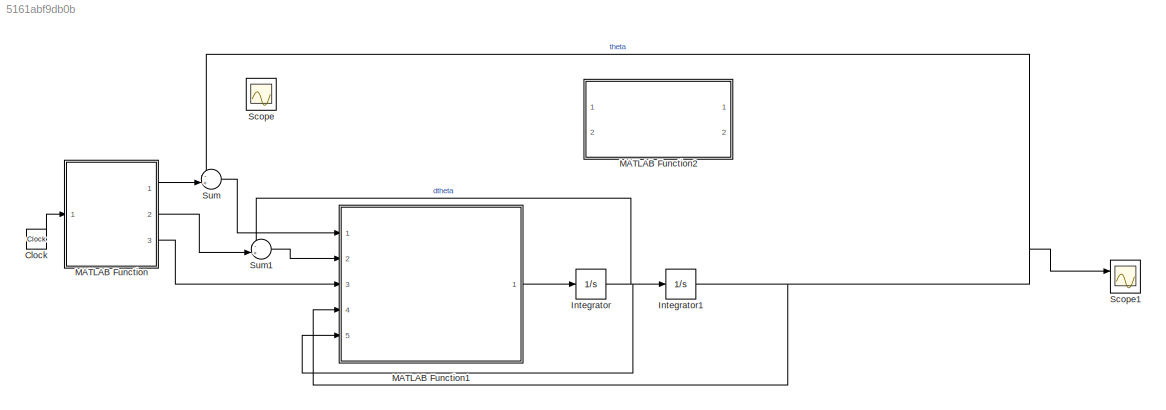
MODEL slx_5161abf9db0b
KIND model
CONFIG AbsTol = auto
CONFIG EnableMultiTasking = off
CONFIG FixedStep = auto
CONFIG MaxStep = auto
CONFIG MinStep = auto
CONFIG RelTol = 1e-3
CONFIG SampleTimeConstraint = Unconstrained
CONFIG Solver = VariableStepAuto
CONFIG SolverName = VariableStepAuto
CONFIG StartTime = 0.0
CONFIG StopTime = 2
WORKSPACE source: mxarray member
WORKSPACE a = 0.990099009901
BLOCK [Clock] Clock
BLOCK [Integrator] Integrator
  Ports = [1, 1]
BLOCK [Integrator] Integrator1
  Ports = [1, 1]
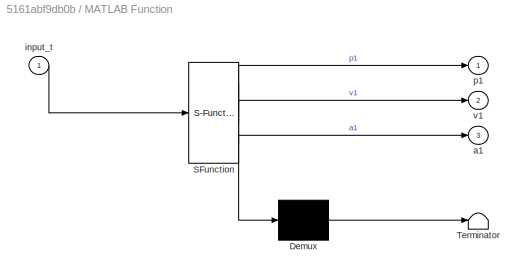
BLOCK [SubSystem] MATLAB Function
  ErrorFcn = Stateflow.Translate.translate
  PermitHierarchicalResolution = ExplicitOnly
  Ports = [1, 3]
  RequestExecContextInheritance = off
  SFBlockType = MATLAB Function
  TreatAsAtomicUnit = on
BLOCK [Demux] MATLAB Function/ Demux 
  Outputs = 1
  Ports = [1, 1]
BLOCK [S-Function] MATLAB Function/ SFunction 
  EnableBusSupport = on
  FunctionName = sf_sfun
  PortCounts = [1 4]
  Ports = [1, 4]
  SFcnIsStateOwnerBlock = off
  SFunctionDeploymentMode = off
  Tag = Stateflow S-Function 2
BLOCK [Terminator] MATLAB Function/ Terminator 
BLOCK [Outport] MATLAB Function/a1
  Port = 3
BLOCK [Inport] MATLAB Function/input_t
BLOCK [Outport] MATLAB Function/p1
BLOCK [Outport] MATLAB Function/v1
  Port = 2
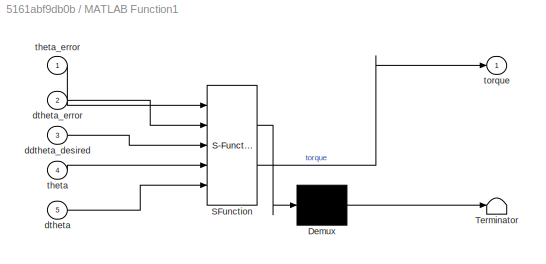
BLOCK [SubSystem] MATLAB Function1
  ErrorFcn = Stateflow.Translate.translate
  PermitHierarchicalResolution = ExplicitOnly
  Ports = [5, 1]
  RequestExecContextInheritance = off
  SFBlockType = MATLAB Function
  TreatAsAtomicUnit = on
BLOCK [Demux] MATLAB Function1/ Demux 
  Outputs = 1
  Ports = [1, 1]
BLOCK [S-Function] MATLAB Function1/ SFunction 
  EnableBusSupport = on
  FunctionName = sf_sfun
  PortCounts = [5 2]
  Ports = [5, 2]
  SFcnIsStateOwnerBlock = off
  SFunctionDeploymentMode = off
  Tag = Stateflow S-Function 1
BLOCK [Terminator] MATLAB Function1/ Terminator 
BLOCK [Inport] MATLAB Function1/ddtheta_desired
  Port = 3
BLOCK [Inport] MATLAB Function1/dtheta
  Port = 5
BLOCK [Inport] MATLAB Function1/dtheta_error
  Port = 2
BLOCK [Inport] MATLAB Function1/theta
  Port = 4
BLOCK [Inport] MATLAB Function1/theta_error
BLOCK [Outport] MATLAB Function1/torque
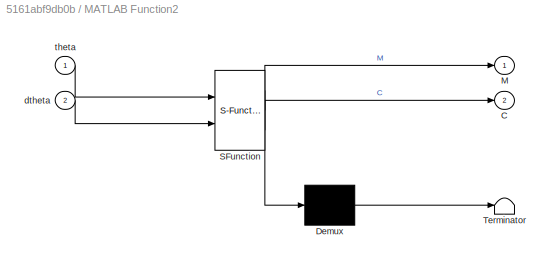
BLOCK [SubSystem] MATLAB Function2
  ErrorFcn = Stateflow.Translate.translate
  PermitHierarchicalResolution = ExplicitOnly
  Ports = [2, 2]
  RequestExecContextInheritance = off
  SFBlockType = MATLAB Function
  TreatAsAtomicUnit = on
BLOCK [Demux] MATLAB Function2/ Demux 
  Outputs = 1
  Ports = [1, 1]
BLOCK [S-Function] MATLAB Function2/ SFunction 
  EnableBusSupport = on
  FunctionName = sf_sfun
  PortCounts = [2 3]
  Ports = [2, 3]
  SFcnIsStateOwnerBlock = off
  SFunctionDeploymentMode = off
  Tag = Stateflow S-Function 3
BLOCK [Terminator] MATLAB Function2/ Terminator 
BLOCK [Outport] MATLAB Function2/C
  Port = 2
BLOCK [Outport] MATLAB Function2/M
BLOCK [Inport] MATLAB Function2/dtheta
  Port = 2
BLOCK [Inport] MATLAB Function2/theta
BLOCK [Scope] Scope
  Floating = off
  NumInputPorts = 3
  Ports = [3]
  ScopeSpecificationString = Simulink.scopes.TimeScopeBlockCfg('CurrentConfiguration', extmgr.ConfigurationSet(extmgr.Configuration('Core','General UI',true),extmgr.Configuration('Core','Source UI',true),extmgr.Configuration('Sources','WiredSimulink',true),extmgr.Configuration('Visuals','Time Domain',true,'SerializedDisplays',{struct('MinYLimReal','-1.00000','MaxYLimReal','1.00000','YLabelReal','','MinYLimMag','0.00000','MaxY...<+3723ch>
BLOCK [Scope] Scope1
  Floating = off
  NumInputPorts = 2
  Ports = [2]
  ScopeSpecificationString = Simulink.scopes.TimeScopeBlockCfg('CurrentConfiguration', extmgr.ConfigurationSet(extmgr.Configuration('Core','General UI',true),extmgr.Configuration('Core','Source UI',true),extmgr.Configuration('Sources','WiredSimulink',true,'DataLoggingVariableName','ScopeData1'),extmgr.Configuration('Visuals','Time Domain',true,'SerializedDisplays',{struct('MinYLimReal','-1.00000','MaxYLimReal','1.00000','YLab...<+3770ch>
BLOCK [Sum] Sum
  Inputs = -+|
  Ports = [2, 1]
BLOCK [Sum] Sum1
  Inputs = -+|
  Ports = [2, 1]
LINE Clock:1 -> MATLAB Function:1
NET Integrator1:1 -> MATLAB Function1:4, Scope1:1, Sum:1
NET Integrator:1 -> Integrator1:1, MATLAB Function1:5, Sum1:1
LINE MATLAB Function1:1 -> Integrator:1
LINE MATLAB Function:1 -> Sum:2
LINE MATLAB Function:2 -> Sum1:2
LINE MATLAB Function:3 -> MATLAB Function1:3
LINE Sum1:1 -> MATLAB Function1:2
LINE Sum:1 -> MATLAB Function1:1
note: NET lines group one-source signal fan-out (src -> all destinations, sorted); 1:1 wires keep LINE
CHART MATLAB Function1 states=1 transitions=1
  STATE_LABEL 'eML_blk_kernel()'
  STATE_LABEL 'SCRIPT:\nfunction torque  = conputed_torque(theta_error,dtheta_error,ddtheta_desired,theta,dtheta)\nKv = 1;\nKp = 1;\n\n% 机械臂参数\nm1 = 12;\nm2 = 12;\n\nl1 = 1;\nl2 = 1;\n\nr1 = 0.5;\nr2 = 0.5;\n\nI1 = [0.0125,0,0;0,1.0025,0;0,0,1.01];\nI2 = I1;\n\n% 运动学方程\nalpha = I1(3,3)+I2(3,3)+m1*r1^2+m2*(l1^2+r2^2);\nbeta = m2*l1*r2;\ndelta = I2(3,3)+m2*r2^2;\n\ntheta\ndtheta\n\ntheta1 = theta(1,1);\ntheta2 = theta(2,1);\ndtheta1 = dtheta...<+335ch>'
CHART MATLAB Function states=1 transitions=1
  STATE_LABEL 'eML_blk_kernel()'
  STATE_LABEL 'SCRIPT:\nfunction [p1,v1,a1] = trajectory1(input_t)\ntheta1 = 5;\ntheta2 = 15;\ntheta3 = 40;\n\nacceleration_b = 80;\n\ntd12 = 1;\ntd23 = 1;\n\nacceleration_1 = acceleration_b;\ntb1 = td12 - sqrt(td12^2-2*(theta2-theta2)/acceleration_1);\nvelocity12 = (theta2-theta1)/(td12-tb1/2);\n\nacceleration_3 = -acceleration_b;\ntb3 = td23 - sqrt(td23^2 + 2*(theta3-theta2)/acceleration_3);\nvelocity23 = (theta3-theta2)/(td23...<+1292ch>'
CHART MATLAB Function2 states=1 transitions=1
  STATE_LABEL 'eML_blk_kernel()'
  STATE_LABEL 'SCRIPT:\nfunction [M,C] = compute_MC(theta,dtheta)\n% 机械臂参数\nm1 = 12;\nm2 = 12;\n\nl1 = 1;\nl2 = 1;\n\nr1 = 0.5;\nr2 = 0.5;\n\nI1 = [0.0125,0,0;0,1.0025,0;0,0,1.01];\nI2 = I1;\n\n% 运动学方程\nalpha = I1(3,3)+I2(3,3)+m1*r1^2+m2*(l1^2+r2^2);\nbeta = m2*l1*r2;\ndelta = I2(3,3)+m2*r2^2;\n\ntheta\ndtheta\n\ntheta1 = theta(1);\ntheta2 = theta(2);\ndtheta1 = dtheta(1);\ndtheta2 = dtheta(2);\n\nM = [alpha+2*beta*cos(theta2),delta+beta*c...<+137ch>'
CHART  states=0 transitions=0
CHART  states=0 transitions=0
CHART  states=0 transitions=0
